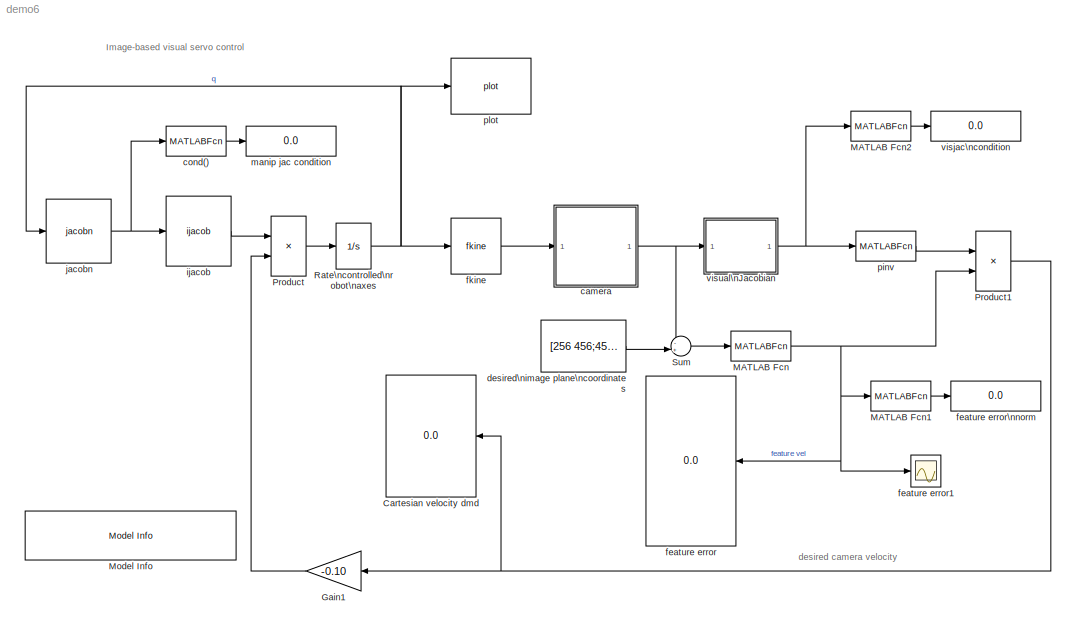
MODEL demo6
KIND model
BLOCK [Display] Cartesian velocity dmd
  Decimation = 1
  Format = bank
  Lockdown = off
  Ports = [1]
BLOCK [Gain] Gain1
  Gain = -0.10
BLOCK [MATLABFcn] MATLAB Fcn
  MATLABFcn = reshape(u',prod(size(u)),1)
  Ports = [1, 1]
BLOCK [MATLABFcn] MATLAB Fcn1
  MATLABFcn = norm(u)
  Ports = [1, 1]
BLOCK [MATLABFcn] MATLAB Fcn2
  MATLABFcn = cond(u)
  Ports = [1, 1]
BLOCK [Reference] Model Info  REF=simulink/Model-Wide\nUtilities/Model Info
  BlockCM = none
  DisplayStringWithTags = Image-based visual servo control\n%<Creator>\n%<LastModificationDate>
  Frame = on
  FunctionWithSeparateData = off
  HorizontalTextAlignment = Left
  InitialBlockCM = none
  LeftAlignmentValue = 0.02
  MaskDisplayString = Image-based visual servo control\\npic\\n23-Apr-2008 23:02:56
  Ports = []
  RTWMemSecDataConstants = Inherit from model
  RTWMemSecDataInternal = Inherit from model
  RTWMemSecDataParameters = Inherit from model
  RTWMemSecFuncExecute = Inherit from model
  RTWMemSecFuncInitTerm = Inherit from model
  ShowPortLabels = FromPortIcon
  SourceBlock = simulink/Model-Wide\nUtilities/Model Info
  SourceBlockDiagram = demo6
  SourceType = CMBlock
  SystemSampleTime = -1
  TagMaxNumber = 20
BLOCK [Product] Product
  Multiplication = Matrix(*)
  Ports = [2, 1]
BLOCK [Product] Product1
  Multiplication = Matrix(*)
  Ports = [2, 1]
BLOCK [Integrator] Rate\ncontrolled\nrobot\naxes
  InitialCondition = [0.3048   -0.9869    0.4483   -0.3513   -1.0595    0.1774]
  Ports = [1, 1]
BLOCK [Sum] Sum
  IconShape = round
  Inputs = -+|
  Ports = [2, 1]
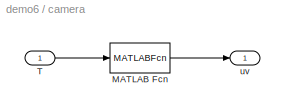
BLOCK [SubSystem] camera
  FunctionWithSeparateData = off
  MaskCallbackString = |||
  MaskEnableString = on,on,on,on
  MaskHideContents = off
  MaskIconFrame = on
  MaskIconOpaque = on
  MaskIconRotate = none
  MaskIconUnits = autoscale
  MaskInitialization = h=gcamera(cam_name,camcalp_c(camdata),dims);
  MaskPromptString = Name|Camera params|Image plane size|Points (nx2)
  MaskStyleString = edit,edit,edit,edit
  MaskTabNameString = ,,,
  MaskToolTipString = on,on,on,on
  MaskTunableValueString = on,on,on,on
  MaskValueString = IBVS camera|[8e-3 80e3 80e3 256 256]|[0 511 0 511]|rotz(0.02)*[2 0.2 0.2;2 0.2 -0.2; 2 -0.2 -0.2 ;2 -0.2 0.2]
  MaskVarAliasString = ,,,
  MaskVariables = cam_name=&1;camdata=@2;dims=@3;points=@4;
  MaskVisibilityString = on,on,on,on
  MinAlgLoopOccurrences = off
  Opaque = off
  Ports = [1, 1]
  PropExecContextOutsideSubsystem = off
  RTWSystemCode = Auto
  RequestExecContextInheritance = off
BLOCK [MATLABFcn] camera/MATLAB Fcn
  MATLABFcn = gcamera(h,points, eye(4,4), u)
  Output1D = off
  OutputDimensions = [4,2]
  OutputSignalType = real
  Ports = [1, 1]
BLOCK [Inport] camera/T
  IconDisplay = Port number
BLOCK [Outport] camera/uv
  IconDisplay = Port number
BLOCK [MATLABFcn] cond()
  MATLABFcn = cond(u)
  Ports = [1, 1]
BLOCK [Constant] desired\nimage plane\ncoordinates
  Value = [256 456;456 456;456 256;256 256]
  VectorParams1D = off
BLOCK [Display] feature error
  Decimation = 1
  Format = bank
  Lockdown = off
  Ports = [1]
BLOCK [Scope] feature error1
  DataFormat = StructureWithTime
  Floating = off
  NumInputPorts = 1
  Ports = [1]
  SampleTime = 0
  SaveName = ScopeData1
  YMax = 55
  YMin = 10
  ZoomMode = yonly
BLOCK [Display] feature error\nnorm
  Decimation = 1
  Lockdown = off
  Ports = [1]
BLOCK [Reference] fkine  REF=roblocks/fkine  (lib defined in mdl_2a292b13c81b, mdl_69400f8cfe22, +12 more)
  FunctionWithSeparateData = off
  Ports = [1, 1]
  RTWMemSecDataConstants = Inherit from model
  RTWMemSecDataInternal = Inherit from model
  RTWMemSecDataParameters = Inherit from model
  RTWMemSecFuncExecute = Inherit from model
  RTWMemSecFuncInitTerm = Inherit from model
  ShowPortLabels = FromPortIcon
  SourceBlock = roblocks/fkine
  SystemSampleTime = -1
  robot = p560
BLOCK [Reference] ijacob  REF=roblocks/ijacob  (lib defined in mdl_2a292b13c81b, mdl_69400f8cfe22, +12 more)
  FunctionWithSeparateData = off
  Ports = [1, 1]
  RTWMemSecDataConstants = Inherit from model
  RTWMemSecDataInternal = Inherit from model
  RTWMemSecDataParameters = Inherit from model
  RTWMemSecFuncExecute = Inherit from model
  RTWMemSecFuncInitTerm = Inherit from model
  ShowPortLabels = FromPortIcon
  SourceBlock = roblocks/ijacob
  SystemSampleTime = -1
BLOCK [Reference] jacobn  REF=roblocks/jacobn  (lib defined in mdl_2a292b13c81b, mdl_69400f8cfe22, +12 more)
  FunctionWithSeparateData = off
  Ports = [1, 1]
  RTWMemSecDataConstants = Inherit from model
  RTWMemSecDataInternal = Inherit from model
  RTWMemSecDataParameters = Inherit from model
  RTWMemSecFuncExecute = Inherit from model
  RTWMemSecFuncInitTerm = Inherit from model
  ShowPortLabels = FromPortIcon
  SourceBlock = roblocks/jacobn
  SystemSampleTime = -1
  robot = p560
BLOCK [Display] manip jac condition
  Decimation = 1
  Lockdown = off
  Ports = [1]
BLOCK [MATLABFcn] pinv
  MATLABFcn = pinv(u)
  Output1D = off
  Ports = [1, 1]
BLOCK [Reference] plot  REF=roblocks/plot  (lib defined in mdl_2a292b13c81b, mdl_69400f8cfe22, +12 more)
  FunctionWithSeparateData = off
  Ports = [1]
  RTWMemSecDataConstants = Inherit from model
  RTWMemSecDataInternal = Inherit from model
  RTWMemSecDataParameters = Inherit from model
  RTWMemSecFuncExecute = Inherit from model
  RTWMemSecFuncInitTerm = Inherit from model
  ShowPortLabels = FromPortIcon
  SourceBlock = roblocks/plot
  SystemSampleTime = -1
  robot = p560
BLOCK [Display] visjac\ncondition
  Decimation = 1
  Lockdown = off
  Ports = [1]
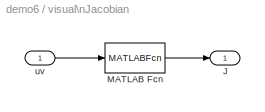
BLOCK [SubSystem] visual\nJacobian
  FunctionWithSeparateData = off
  MaskCallbackString = |
  MaskEnableString = on,on
  MaskHideContents = off
  MaskIconFrame = on
  MaskIconOpaque = on
  MaskIconRotate = none
  MaskIconUnits = autoscale
  MaskPromptString = Camera params|Assumed depth (m)
  MaskStyleString = edit,edit
  MaskTabNameString = ,
  MaskToolTipString = on,on
  MaskTunableValueString = on,on
  MaskValueString = [8e-3 80e3 80e3 256 256]|2
  MaskVarAliasString = ,
  MaskVariables = camdata=@1;z=@2;
  MaskVisibilityString = on,on
  MinAlgLoopOccurrences = off
  Opaque = off
  Ports = [1, 1]
  PropExecContextOutsideSubsystem = off
  RTWSystemCode = Auto
  RequestExecContextInheritance = off
BLOCK [Outport] visual\nJacobian/J
  IconDisplay = Port number
BLOCK [MATLABFcn] visual\nJacobian/MATLAB Fcn
  MATLABFcn = visjac(u,camdata,z)
  Output1D = off
  OutputDimensions = [8 6]
  Ports = [1, 1]
BLOCK [Inport] visual\nJacobian/uv
  IconDisplay = Port number
ANNOTATION (root): Image-based visual servo control
ANNOTATION (root): desired camera velocity
LINE Gain1:1 -> Product:2
LINE MATLAB Fcn1:1 -> feature error\nnorm:1
LINE MATLAB Fcn2:1 -> visjac\ncondition:1
NET MATLAB Fcn:1 -> MATLAB Fcn1:1, Product1:2, feature error1:1, feature error:1
NET Product1:1 -> Cartesian velocity dmd:1, Gain1:1
LINE Product:1 -> Rate\ncontrolled\nrobot\naxes:1
NET Rate\ncontrolled\nrobot\naxes:1 -> fkine:1, jacobn:1, plot:1
LINE Sum:1 -> MATLAB Fcn:1
LINE camera/MATLAB Fcn:1 -> camera/uv:1
LINE camera/T:1 -> camera/MATLAB Fcn:1
NET camera:1 -> Sum:1, visual\nJacobian:1
LINE cond():1 -> manip jac condition:1
LINE desired\nimage plane\ncoordinates:1 -> Sum:2
LINE fkine:1 -> camera:1
LINE ijacob:1 -> Product:1
NET jacobn:1 -> cond():1, ijacob:1
LINE pinv:1 -> Product1:1
LINE visual\nJacobian/MATLAB Fcn:1 -> visual\nJacobian/J:1
LINE visual\nJacobian/uv:1 -> visual\nJacobian/MATLAB Fcn:1
NET visual\nJacobian:1 -> MATLAB Fcn2:1, pinv:1
note: NET lines group one-source signal fan-out (src -> all destinations, sorted); 1:1 wires keep LINE
